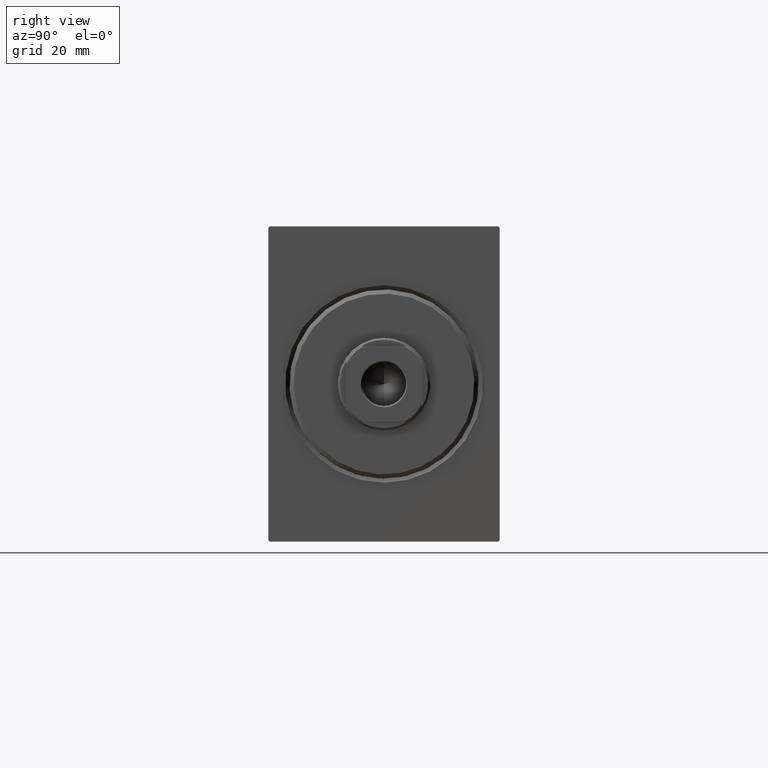
[diagram: clean part render]
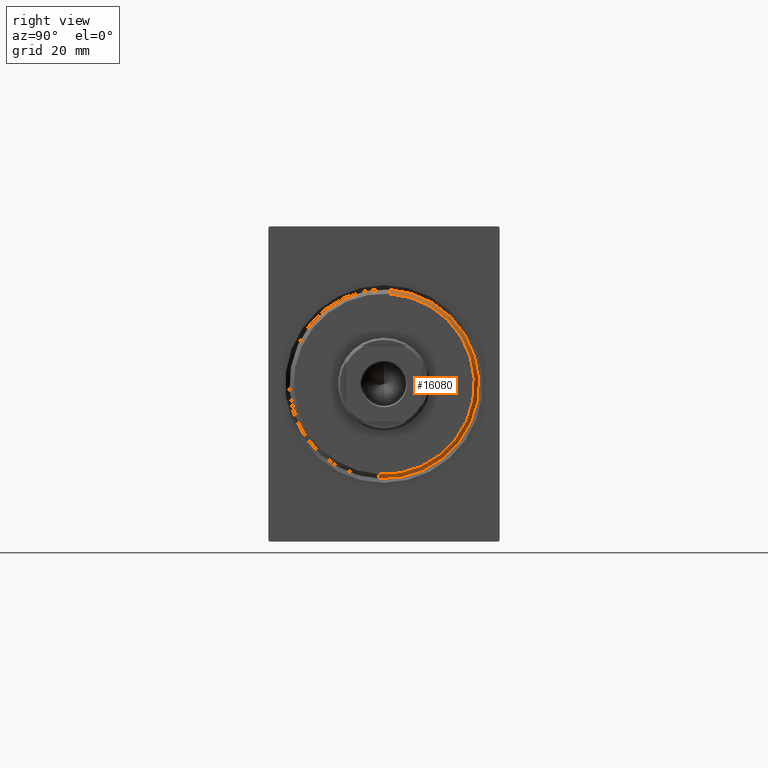
[diagram: same view with one face highlighted and labeled with its STEP entity id]
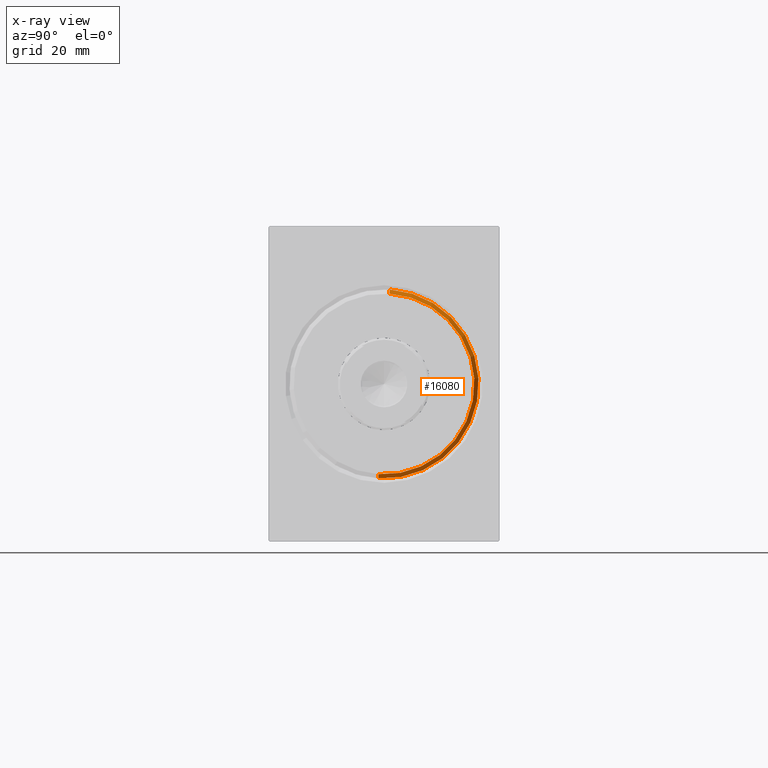
[diagram: x-ray of the same camera — body ghosted, the highlighted face saturated]
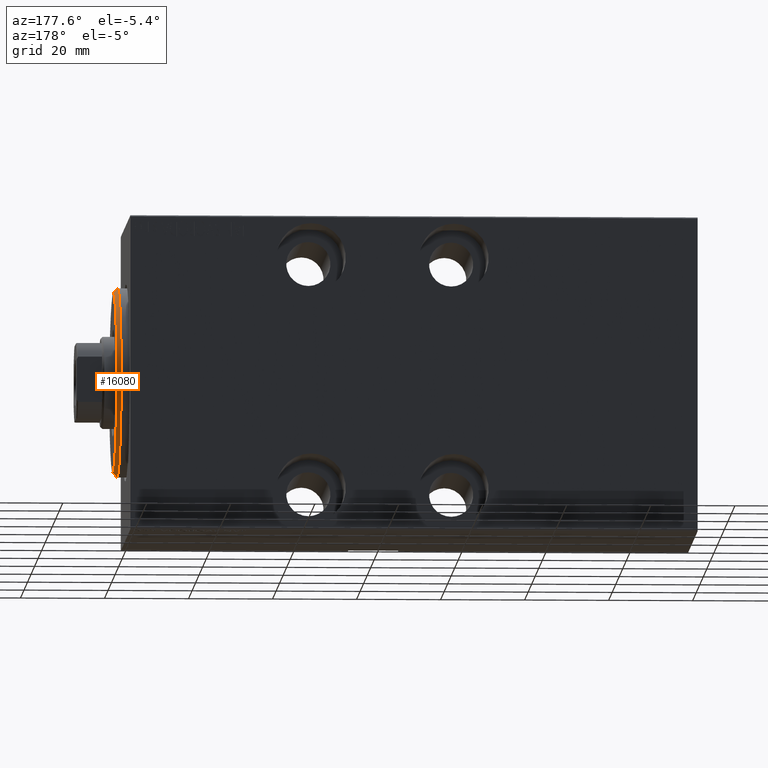
[diagram: same view with one face highlighted and labeled with its STEP entity id]
A machine part, right view. The second image highlights one B-rep face of the part: STEP entity #16080.
The next image is the same camera in x-ray: the body ghosted, the highlighted face saturated — about 0% of this face is hidden behind the body in this view.
A second angle (auxiliary view) of the same face is appended — the face is thin or edge-on in the first view.
In plain terms, the highlighted conical surface has half-angle 45 deg.
Its self-contained STEP definition (entity closure, byte-faithful):
#69 = DIRECTION ( 'NONE',  ( 0.000000000000000000, 0.000000000000000000, 1.000000000000000000 ) ) ;
#832 = CIRCLE ( 'NONE', #7907, 21.50000000000000355 ) ;
#1085 = DIRECTION ( 'NONE',  ( 0.000000000000000000, 0.000000000000000000, -1.000000000000000000 ) ) ;
#2119 = CIRCLE ( 'NONE', #12021, 22.50000000000000355 ) ;
#4093 = EDGE_LOOP ( 'NONE', ( #6273, #38755, #6623, #15579 ) ) ;
#5070 = VERTEX_POINT ( 'NONE', #17841 ) ;
#5673 = CONICAL_SURFACE ( 'NONE', #9931, 21.50000000000000355, 0.7853981633974466137 ) ;
#6273 = ORIENTED_EDGE ( 'NONE', *, *, #20405, .F. ) ;
#6623 = ORIENTED_EDGE ( 'NONE', *, *, #15315, .F. ) ;
#7907 = AXIS2_PLACEMENT_3D ( 'NONE', #30968, #17470, #1085 ) ;
#8230 = VERTEX_POINT ( 'NONE', #29975 ) ;
#8365 = DIRECTION ( 'NONE',  ( -0.7071067811865487940, 8.659560562354919300E-17, -0.7071067811865463515 ) ) ;
#9034 = DIRECTION ( 'NONE',  ( -1.000000000000000000, 0.000000000000000000, 0.000000000000000000 ) ) ;
#9931 = AXIS2_PLACEMENT_3D ( 'NONE', #26420, #19560, #69 ) ;
#12021 = AXIS2_PLACEMENT_3D ( 'NONE', #40613, #9034, #26897 ) ;
#12085 = VECTOR ( 'NONE', #8365, 1000.000000000000000 ) ;
#14978 = LINE ( 'NONE', #27833, #36972 ) ;
#15102 = CARTESIAN_POINT ( 'NONE',  ( 1.999999999999999112, 2.755455298081545172E-15, -22.50000000000000355 ) ) ;
#15315 = EDGE_CURVE ( 'NONE', #5070, #32117, #2119, .T. ) ;
#15579 = ORIENTED_EDGE ( 'NONE', *, *, #23753, .F. ) ;
#16080 = ADVANCED_FACE ( 'NONE', ( #43026 ), #5673, .T. ) ;
#17422 = DIRECTION ( 'NONE',  ( -0.7071067811865487940, 0.000000000000000000, 0.7071067811865463515 ) ) ;
#17470 = DIRECTION ( 'NONE',  ( 1.000000000000000000, -0.000000000000000000, 0.000000000000000000 ) ) ;
#17730 = EDGE_CURVE ( 'NONE', #8230, #32117, #18330, .T. ) ;
#17841 = CARTESIAN_POINT ( 'NONE',  ( 1.999999999999999112, 0.000000000000000000, 22.50000000000000355 ) ) ;
#18330 = LINE ( 'NONE', #31834, #12085 ) ;
#19560 = DIRECTION ( 'NONE',  ( -1.000000000000000000, 0.000000000000000000, 0.000000000000000000 ) ) ;
#20405 = EDGE_CURVE ( 'NONE', #8230, #37019, #832, .T. ) ;
#23753 = EDGE_CURVE ( 'NONE', #37019, #5070, #14978, .T. ) ;
#26420 = CARTESIAN_POINT ( 'NONE',  ( 3.000000000000000000, 0.000000000000000000, 0.000000000000000000 ) ) ;
#26897 = DIRECTION ( 'NONE',  ( 0.000000000000000000, 0.000000000000000000, -1.000000000000000000 ) ) ;
#27833 = CARTESIAN_POINT ( 'NONE',  ( 3.000000000000000000, 0.000000000000000000, 21.50000000000000355 ) ) ;
#29975 = CARTESIAN_POINT ( 'NONE',  ( 3.000000000000000000, 2.694222958124177598E-15, -21.50000000000000355 ) ) ;
#30968 = CARTESIAN_POINT ( 'NONE',  ( 3.000000000000000000, 0.000000000000000000, 0.000000000000000000 ) ) ;
#31834 = CARTESIAN_POINT ( 'NONE',  ( 3.000000000000000000, 2.632990618166810024E-15, -21.50000000000000355 ) ) ;
#32117 = VERTEX_POINT ( 'NONE', #15102 ) ;
#36972 = VECTOR ( 'NONE', #17422, 1000.000000000000000 ) ;
#37019 = VERTEX_POINT ( 'NONE', #41308 ) ;
#38755 = ORIENTED_EDGE ( 'NONE', *, *, #17730, .T. ) ;
#40613 = CARTESIAN_POINT ( 'NONE',  ( 1.999999999999999112, 0.000000000000000000, 0.000000000000000000 ) ) ;
#41308 = CARTESIAN_POINT ( 'NONE',  ( 3.000000000000000000, 0.000000000000000000, 21.50000000000000355 ) ) ;
#43026 = FACE_OUTER_BOUND ( 'NONE', #4093, .T. ) ;